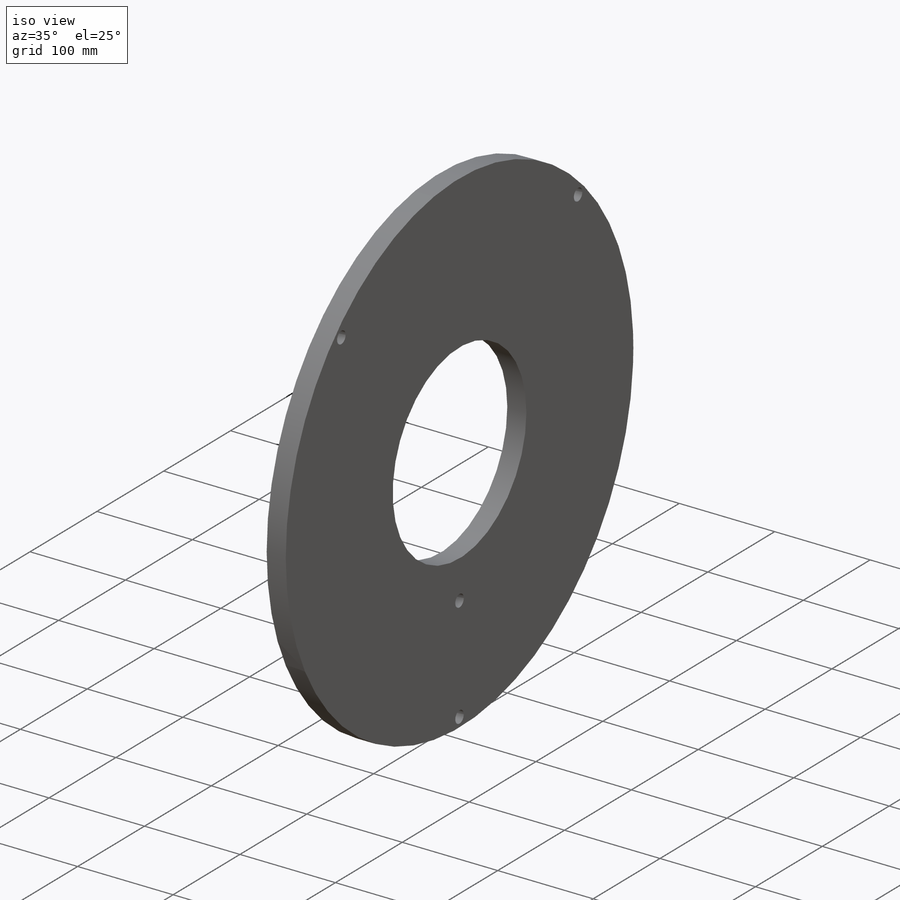
[diagram: iso view]
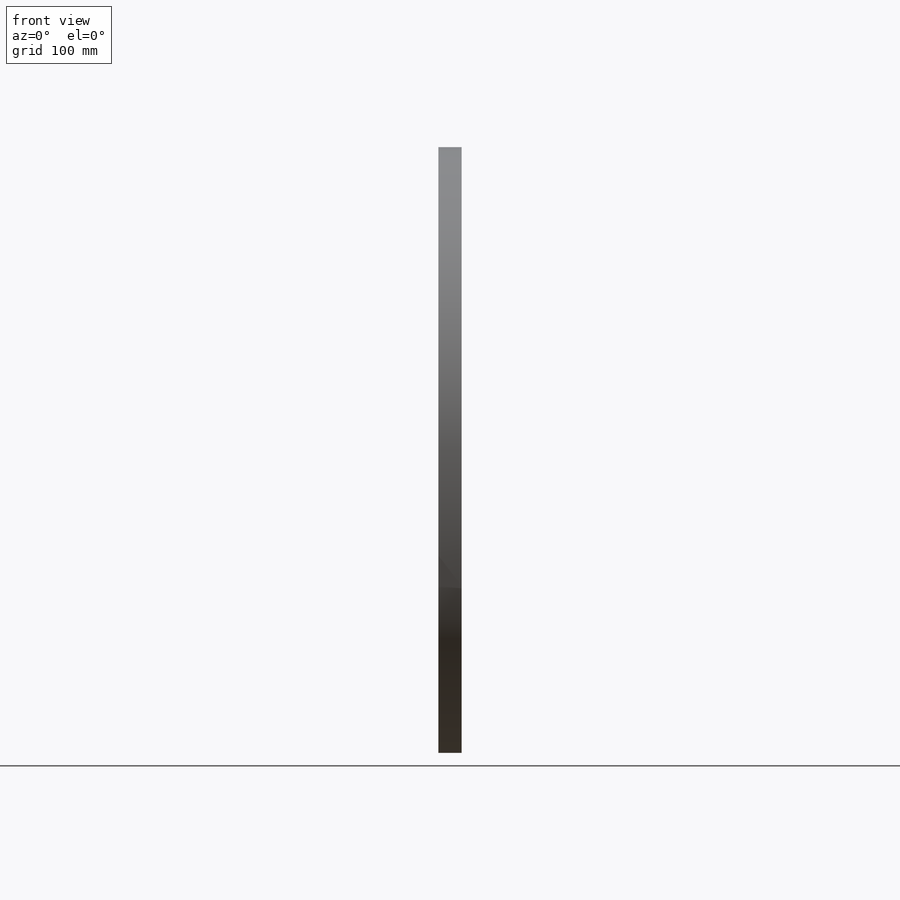
[diagram: front view]
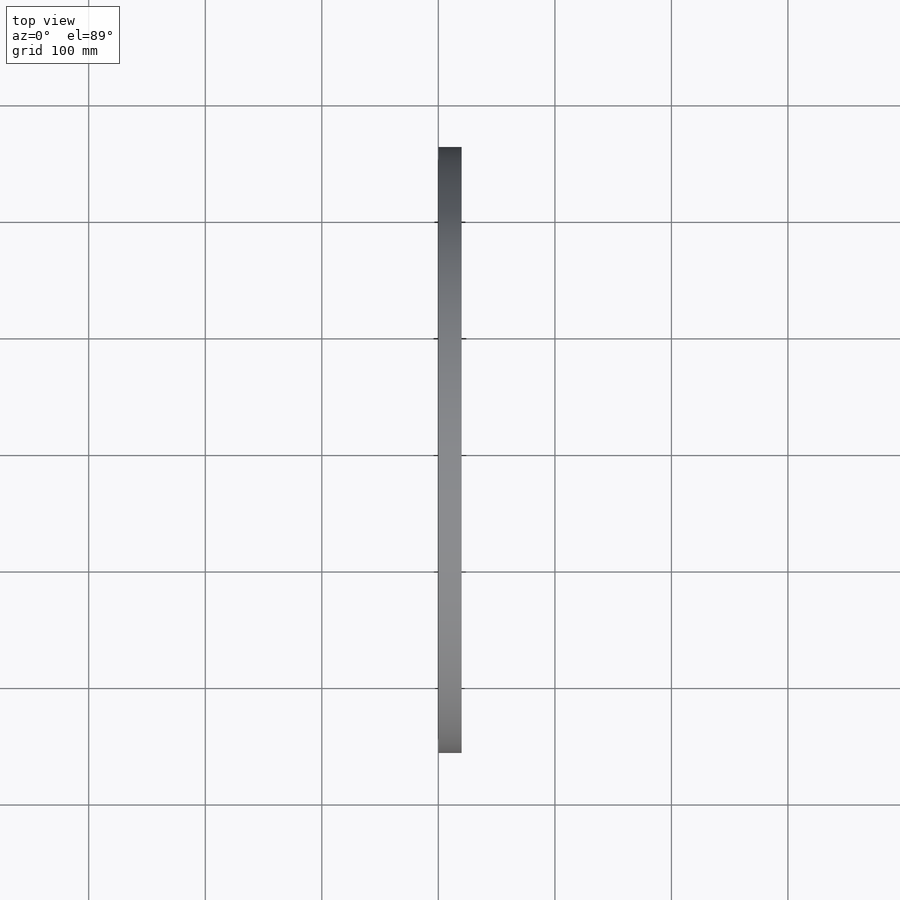
[diagram: top view]
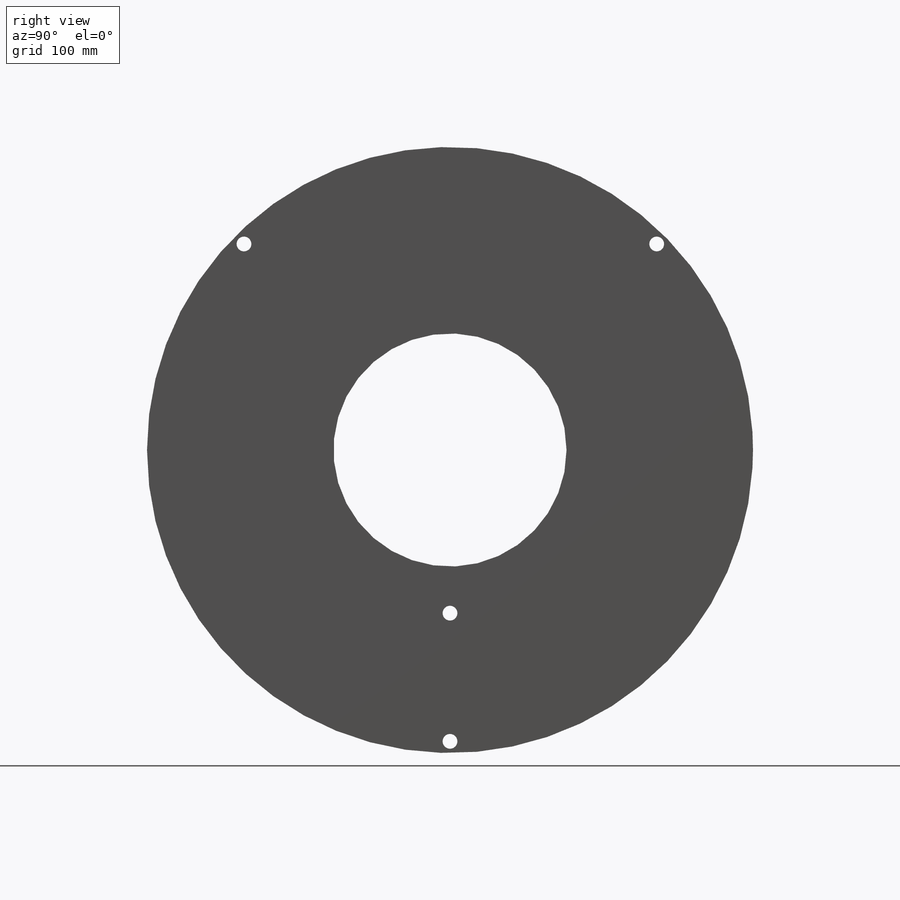
[diagram: right view]
SOLIDWORKS PART (.sldprt)
format: sldprt  version: not decoded by parser v0  size: 173,568 bytes
history: native  units: mm
features: sketch x4, material x1, extrude x1, plane x1, cut_extrude x1, hole x1 (+12 scaffold rows collapsed)
feature tree (21):
  scaffold x12  (default folders/planes/origin — collapsed)
  material  "Copper"
  sketch  "Sketch1"  dims[D1=~222.654205mm]
  extrude  "Boss-Extrude1"  Depth=20mm
  plane  "Plane1"  Offset=0mm
  sketch  "Sketch2"  dims[c1.D1=~96.377343mm c2.D1=45.0deg]
  cut_extrude  "Cut-Extrude1"  Depth=20mm
  hole  "1/2-13 Tapped Hole1"  Diameter=10.71626mm Depth=70.4mm
  sketch  "3DSketch2"
  sketch  "Sketch4"  dims[hole-wizard template sketch: 29 standard entries collapsed; hole parameters kept: c8.Tap Drill Depth=70.4mm c8.Thread Major Dia.=12.7mm c8.Thread Depth=64.5mm c8.D5=~14.816244mm c8.Drill Angle=118.0deg]
decode coverage: 6 of 7 modeling features carry decoded parameters
note: ~ marks probable driven/reference dimensions
note: suppression state not decoded; provenance and decode notes live in map.json
